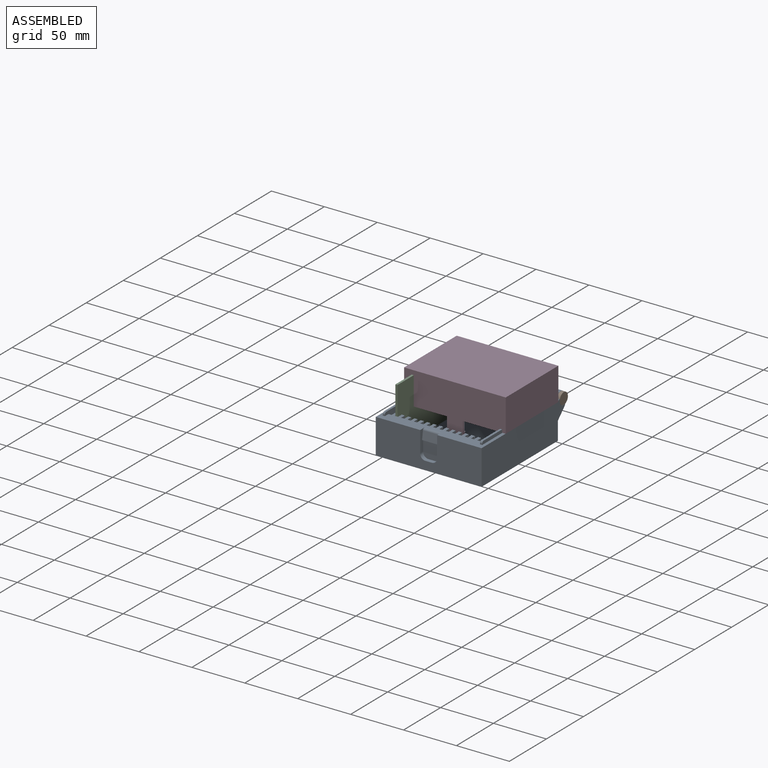
[diagram: assembled view]
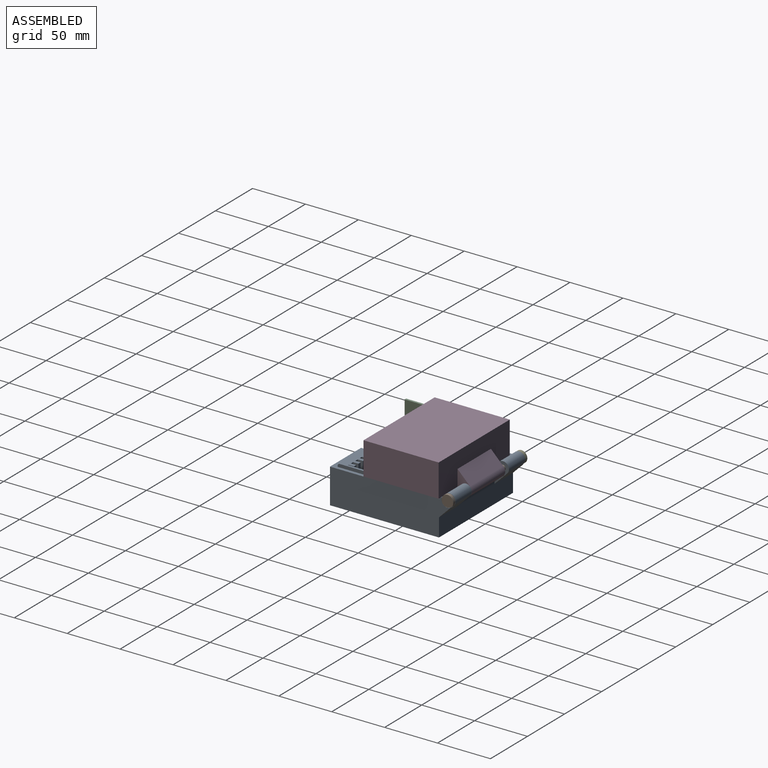
[diagram: assembled view, second angle]
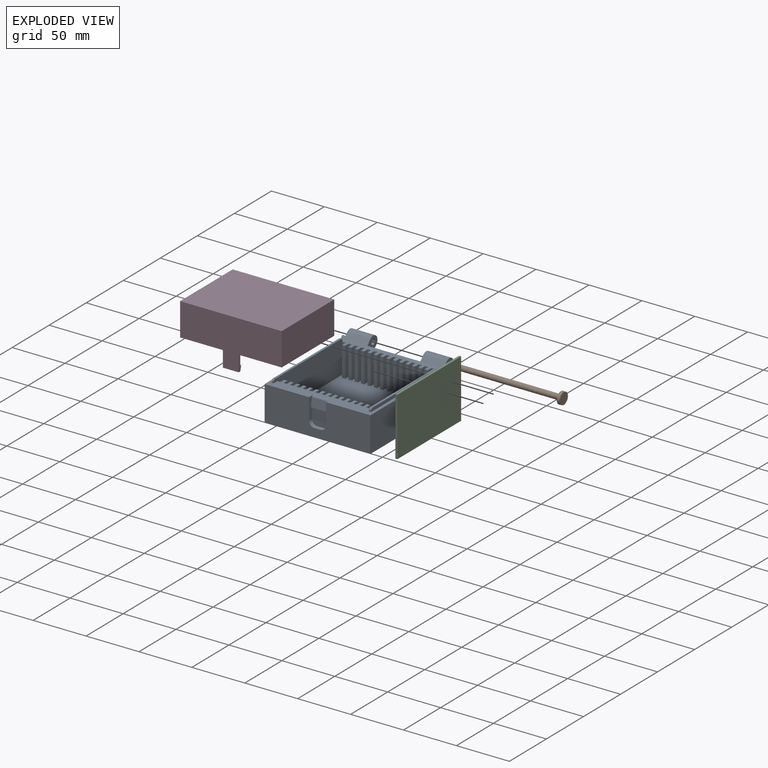
[diagram: exploded view]
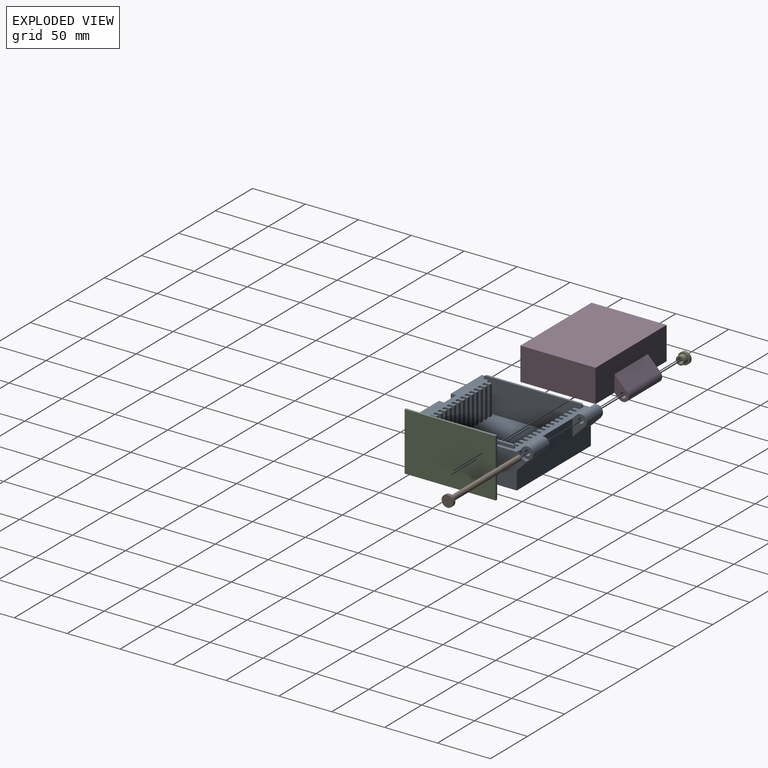
[diagram: exploded view, second angle]
ASSEMBLY  parts=5 mates=4
PART A: 168 faces, bbox 100x116.6x38.7 mm
  f0: plane 103x100mm, normal (0,0,1), area 2367.5mm2, adj f1,f3,f4,f5,f6,f7,f8,f9
  f1: plane 100x33mm, normal (0,-1,0), area 2910.7mm2, adj f0,f36,f37,f39,f159,f160,f165,f166
  f2: cylinder r=2.55mm len=17mm, axis (-1,0,0), area 272.4mm2, adj f140,f146
  f3: plane 100x33mm, normal (0,1,0), area 2510mm2, adj f0,f36,f37,f39,f130,f132,f138,f140
  f4: plane 92.8x31mm, normal (-1,0,0), area 2460.7mm2, adj f0,f19,f83,f127,f151,f152,f154,f155
  f5: plane 28x3mm, normal (0,1,0), area 84mm2, adj f0,f19,f105,f124
  f6: plane 28x3mm, normal (0,1,0), area 84mm2, adj f0,f19,f111,f121
  f7: plane 28x3mm, normal (0,1,0), area 84mm2, adj f0,f19,f117,f120
  f8: plane 28x3mm, normal (0,1,0), area 84mm2, adj f0,f19,f102,f114
  f9: plane 28x3mm, normal (0,1,0), area 84mm2, adj f0,f19,f95,f112
  f10: plane 28x3mm, normal (0,1,0), area 84mm2, adj f0,f19,f86,f108
  f11: plane 28x3mm, normal (0,1,0), area 84mm2, adj f0,f19,f98,f106
  f12: plane 28x3mm, normal (0,1,0), area 84mm2, adj f0,f19,f103,f119
  f13: plane 28x3mm, normal (0,1,0), area 84mm2, adj f0,f19,f100,f116
  f14: plane 28x3mm, normal (0,1,0), area 84mm2, adj f0,f19,f96,f99
  f15: plane 28x3mm, normal (0,1,0), area 84mm2, adj f0,f19,f93,f126
  f16: plane 28x3mm, normal (0,1,0), area 84mm2, adj f0,f19,f91,f123
  f17: plane 28x3mm, normal (0,1,0), area 84mm2, adj f0,f19,f88,f90
  f18: plane 28x3mm, normal (0,1,0), area 84mm2, adj f0,f19,f84,f87
  f19: plane 90x88mm, normal (0,0,1), area 7470mm2, adj f4,f5,f6,f7,f8,f9,f10,f11
  f20: plane 28x3mm, normal (0,-1,0), area 84mm2, adj f0,f19,f81,f82
  f21: plane 28x3mm, normal (0,-1,0), area 84mm2, adj f0,f19,f78,f79
  f22: plane 28x3mm, normal (0,-1,0), area 84mm2, adj f0,f19,f75,f76
  f23: plane 28x3mm, normal (0,-1,0), area 84mm2, adj f0,f19,f72,f73
  f24: plane 28x3mm, normal (0,-1,0), area 84mm2, adj f0,f19,f69,f70
  f25: plane 28x3mm, normal (0,-1,0), area 84mm2, adj f0,f19,f66,f67
  f26: plane 28x3mm, normal (0,-1,0), area 84mm2, adj f0,f19,f63,f64
  f27: plane 28x3mm, normal (0,-1,0), area 84mm2, adj f0,f19,f60,f61
  f28: plane 28x3mm, normal (0,-1,0), area 84mm2, adj f0,f19,f57,f58
  f29: plane 28x3mm, normal (0,-1,0), area 84mm2, adj f0,f19,f54,f55
  f30: plane 28x3mm, normal (0,-1,0), area 84mm2, adj f0,f19,f51,f52
  f31: plane 28x3mm, normal (0,-1,0), area 84mm2, adj f0,f19,f48,f49
  f32: plane 28x3mm, normal (0,-1,0), area 84mm2, adj f0,f19,f45,f46
  f33: plane 28x3mm, normal (0,-1,0), area 84mm2, adj f0,f19,f42,f43
  f34: plane 28x3mm, normal (0,-1,0), area 84mm2, adj f0,f19,f38,f40
  f35: plane 28x3mm, normal (0,1,0), area 84mm2, adj f0,f19,f38,f110
  f36: plane 112.73x34.83mm, normal (1,0,0), area 3474.8mm2, adj f0,f1,f3,f39,f129,f130,f133,f135
  f37: plane 112.73x34.83mm, normal (-1,0,0), area 3474.8mm2, adj f0,f1,f3,f39,f137,f138,f141,f143
  f38: plane 92.9x31mm, normal (1,0,0), area 2740.7mm2, adj f0,f19,f34,f35,f147,f149,f150,f157
  f39: plane 103x100mm, normal (0,0,-1), area 10300mm2, adj f1,f3,f36,f37
  f40: plane 28x5mm, normal (-1,0,0), area 140mm2, adj f0,f19,f34,f41
  f41: plane 28x3mm, normal (0,-1,0), area 84mm2, adj f0,f19,f40,f42
  f42: plane 28x5mm, normal (1,0,0), area 140mm2, adj f0,f19,f33,f41
  f43: plane 28x5mm, normal (-1,0,0), area 140mm2, adj f0,f19,f33,f44
  f44: plane 28x3mm, normal (0,-1,0), area 84mm2, adj f0,f19,f43,f45
  f45: plane 28x5mm, normal (1,0,0), area 140mm2, adj f0,f19,f32,f44
  f46: plane 28x5mm, normal (-1,0,0), area 140mm2, adj f0,f19,f32,f47
  f47: plane 28x3mm, normal (0,-1,0), area 84mm2, adj f0,f19,f46,f48
  f48: plane 28x5mm, normal (1,0,0), area 140mm2, adj f0,f19,f31,f47
  f49: plane 28x5mm, normal (-1,0,0), area 140mm2, adj f0,f19,f31,f50
  f50: plane 28x3mm, normal (0,-1,0), area 84mm2, adj f0,f19,f49,f51
  f51: plane 28x5mm, normal (1,0,0), area 140mm2, adj f0,f19,f30,f50
  f52: plane 28x5mm, normal (-1,0,0), area 140mm2, adj f0,f19,f30,f53
  f53: plane 28x3mm, normal (0,-1,0), area 84mm2, adj f0,f19,f52,f54
  f54: plane 28x5mm, normal (1,0,0), area 140mm2, adj f0,f19,f29,f53
  f55: plane 28x5mm, normal (-1,0,0), area 140mm2, adj f0,f19,f29,f56
  f56: plane 28x3mm, normal (0,-1,0), area 84mm2, adj f0,f19,f55,f57
  f57: plane 28x5mm, normal (1,0,0), area 140mm2, adj f0,f19,f28,f56
  f58: plane 28x5mm, normal (-1,0,0), area 140mm2, adj f0,f19,f28,f59
  f59: plane 28x3mm, normal (0,-1,0), area 84mm2, adj f0,f19,f58,f60
  f60: plane 28x5mm, normal (1,0,0), area 140mm2, adj f0,f19,f27,f59
  f61: plane 28x5mm, normal (-1,0,0), area 140mm2, adj f0,f19,f27,f62
  f62: plane 28x3mm, normal (0,-1,0), area 84mm2, adj f0,f19,f61,f63
  f63: plane 28x5mm, normal (1,0,0), area 140mm2, adj f0,f19,f26,f62
  f64: plane 28x5mm, normal (-1,0,0), area 140mm2, adj f0,f19,f26,f65
  f65: plane 28x3mm, normal (0,-1,0), area 84mm2, adj f0,f19,f64,f66
  f66: plane 28x5mm, normal (1,0,0), area 140mm2, adj f0,f19,f25,f65
  f67: plane 28x5mm, normal (-1,0,0), area 140mm2, adj f0,f19,f25,f68
  f68: plane 28x3mm, normal (0,-1,0), area 84mm2, adj f0,f19,f67,f69
  f69: plane 28x5mm, normal (1,0,0), area 140mm2, adj f0,f19,f24,f68
  f70: plane 28x5mm, normal (-1,0,0), area 140mm2, adj f0,f19,f24,f71
  f71: plane 28x3mm, normal (0,-1,0), area 84mm2, adj f0,f19,f70,f72
  f72: plane 28x5mm, normal (1,0,0), area 140mm2, adj f0,f19,f23,f71
  f73: plane 28x5mm, normal (-1,0,0), area 140mm2, adj f0,f19,f23,f74
  f74: plane 28x3mm, normal (0,-1,0), area 84mm2, adj f0,f19,f73,f75
  f75: plane 28x5mm, normal (1,0,0), area 140mm2, adj f0,f19,f22,f74
  f76: plane 28x5mm, normal (-1,0,0), area 140mm2, adj f0,f19,f22,f77
  f77: plane 28x3mm, normal (0,-1,0), area 84mm2, adj f0,f19,f76,f78
  f78: plane 28x5mm, normal (1,0,0), area 140mm2, adj f0,f19,f21,f77
  f79: plane 28x5mm, normal (-1,0,0), area 140mm2, adj f0,f19,f21,f80
  f80: plane 28x3mm, normal (0,-1,0), area 84mm2, adj f0,f19,f79,f81
  f81: plane 28x5mm, normal (1,0,0), area 140mm2, adj f0,f19,f20,f80
  f82: plane 28x5mm, normal (-1,0,0), area 140mm2, adj f0,f19,f20,f83
  f83: plane 28x3mm, normal (0,-1,0), area 84mm2, adj f0,f4,f19,f82
  f84: plane 28x5mm, normal (1,0,0), area 140mm2, adj f0,f18,f19,f85
  f85: plane 28x3mm, normal (0,1,0), area 84mm2, adj f0,f19,f84,f86
  f86: plane 28x5mm, normal (-1,0,0), area 140mm2, adj f0,f10,f19,f85
  f87: plane 28x5mm, normal (-1,0,0), area 140mm2, adj f0,f18,f19,f89
  f88: plane 28x5mm, normal (1,0,0), area 140mm2, adj f0,f17,f19,f89
  f89: plane 28x3mm, normal (0,1,0), area 84mm2, adj f0,f19,f87,f88
  f90: plane 28x5mm, normal (-1,0,0), area 140mm2, adj f0,f17,f19,f92
  f91: plane 28x5mm, normal (1,0,0), area 140mm2, adj f0,f16,f19,f92
  f92: plane 28x3mm, normal (0,1,0), area 84mm2, adj f0,f19,f90,f91
  f93: plane 28x5mm, normal (1,0,0), area 140mm2, adj f0,f15,f19,f94
  f94: plane 28x3mm, normal (0,1,0), area 84mm2, adj f0,f19,f93,f95
  f95: plane 28x5mm, normal (-1,0,0), area 140mm2, adj f0,f9,f19,f94
  f96: plane 28x5mm, normal (1,0,0), area 140mm2, adj f0,f14,f19,f97
  f97: plane 28x3mm, normal (0,1,0), area 84mm2, adj f0,f19,f96,f98
  f98: plane 28x5mm, normal (-1,0,0), area 140mm2, adj f0,f11,f19,f97
  f99: plane 28x5mm, normal (-1,0,0), area 140mm2, adj f0,f14,f19,f101
  f100: plane 28x5mm, normal (1,0,0), area 140mm2, adj f0,f13,f19,f101
  f101: plane 28x3mm, normal (0,1,0), area 84mm2, adj f0,f19,f99,f100
  f102: plane 28x5mm, normal (-1,0,0), area 140mm2, adj f0,f8,f19,f104
  f103: plane 28x5mm, normal (1,0,0), area 140mm2, adj f0,f12,f19,f104
  f104: plane 28x3mm, normal (0,1,0), area 84mm2, adj f0,f19,f102,f103
  f105: plane 28x5mm, normal (-1,0,0), area 140mm2, adj f0,f5,f19,f107
  f106: plane 28x5mm, normal (1,0,0), area 140mm2, adj f0,f11,f19,f107
  f107: plane 28x3mm, normal (0,1,0), area 84mm2, adj f0,f19,f105,f106
  f108: plane 28x5mm, normal (1,0,0), area 140mm2, adj f0,f10,f19,f109
  f109: plane 28x3mm, normal (0,1,0), area 84mm2, adj f0,f19,f108,f110
  f110: plane 28x5mm, normal (-1,0,0), area 140mm2, adj f0,f19,f35,f109
  f111: plane 28x5mm, normal (-1,0,0), area 140mm2, adj f0,f6,f19,f113
  f112: plane 28x5mm, normal (1,0,0), area 140mm2, adj f0,f9,f19,f113
  f113: plane 28x3mm, normal (0,1,0), area 84mm2, adj f0,f19,f111,f112
  f114: plane 28x5mm, normal (1,0,0), area 140mm2, adj f0,f8,f19,f115
  f115: plane 28x3mm, normal (0,1,0), area 84mm2, adj f0,f19,f114,f116
  f116: plane 28x5mm, normal (-1,0,0), area 140mm2, adj f0,f13,f19,f115
  f117: plane 28x5mm, normal (1,0,0), area 140mm2, adj f0,f7,f19,f118
  f118: plane 28x3mm, normal (0,1,0), area 84mm2, adj f0,f19,f117,f119
  f119: plane 28x5mm, normal (-1,0,0), area 140mm2, adj f0,f12,f19,f118
  f120: plane 28x5mm, normal (-1,0,0), area 140mm2, adj f0,f7,f19,f122
  f121: plane 28x5mm, normal (1,0,0), area 140mm2, adj f0,f6,f19,f122
  f122: plane 28x3mm, normal (0,1,0), area 84mm2, adj f0,f19,f120,f121
  f123: plane 28x5mm, normal (-1,0,0), area 140mm2, adj f0,f16,f19,f125
  f124: plane 28x5mm, normal (1,0,0), area 140mm2, adj f0,f5,f19,f125
  f125: plane 28x3mm, normal (0,1,0), area 84mm2, adj f0,f19,f123,f124
  f126: plane 28x5mm, normal (-1,0,0), area 140mm2, adj f0,f15,f19,f127
  f127: plane 28x3mm, normal (0,1,0), area 84mm2, adj f0,f4,f19,f126
  f128: cylinder r=2.55mm len=22mm, axis (1,0,0), area 352.5mm2, adj f132,f134
  f129: plane 25x4.05mm, normal (0,-0.71,0.71), area 133.2mm2, adj f0,f36,f131,f132,f134,f135
  f130: plane 25x11.95mm, normal (0,0.71,-0.71), area 412.5mm2, adj f3,f36,f131,f132,f134,f136
  f131: cylinder r=5.59mm len=22mm, axis (1,0,0), area 386.1mm2, adj f129,f130,f132,f134
  f132: plane 21.49x13.59mm, normal (-1,0,0), area 155mm2, adj f3,f128,f129,f130,f131
  f133: cylinder r=5.59mm len=6.72mm, axis (1,0,0), area 33.2mm2, adj f36,f134,f135,f136
  f134: plane 11.9x11.9mm, normal (1,0,0), area 79.2mm2, adj f128,f129,f130,f131,f133,f135,f136
  f135: cylinder r=0.5mm len=3mm, axis (1,0,0), area 3.8mm2, adj f36,f129,f133,f134
  f136: cylinder r=0.5mm len=3mm, axis (1,0,0), area 3.8mm2, adj f36,f130,f133,f134
  f137: plane 25x4.05mm, normal (0,-0.71,0.71), area 133.2mm2, adj f0,f37,f139,f140,f142,f143
  f138: plane 25x11.95mm, normal (0,0.71,-0.71), area 412.5mm2, adj f3,f37,f139,f140,f142,f144
  f139: cylinder r=5.59mm len=22mm, axis (-1,0,0), area 386.1mm2, adj f137,f138,f140,f142
  f140: plane 21.49x13.59mm, normal (1,0,0), area 155mm2, adj f2,f3,f137,f138,f139
  f141: cylinder r=5.59mm len=6.72mm, axis (-1,0,0), area 33.2mm2, adj f37,f142,f143,f144
  f142: plane 11.9x11.9mm, normal (-1,0,0), area 48.1mm2, adj f137,f138,f139,f141,f143,f144,f145
  f143: cylinder r=0.5mm len=3mm, axis (-1,0,0), area 3.8mm2, adj f37,f137,f141,f142
  f144: cylinder r=0.5mm len=3mm, axis (-1,0,0), area 3.8mm2, adj f37,f138,f141,f142
  f145: cylinder r=4.05mm len=8.1mm, axis (-1,0,0), area 127.2mm2, adj f142,f146
  f146: plane 8.1x8.1mm, normal (-1,0,0), area 31.1mm2, adj f2,f145
  f147: plane 2x1mm, normal (0,1,0), area 2mm2, adj f0,f38,f148,f157
  f148: plane 92.8x3mm, normal (-1,0,0), area 276.7mm2, adj f0,f147,f149,f150,f157,f158
  f149: plane 2x1mm, normal (0,-1,0), area 2mm2, adj f0,f38,f148,f158
  f150: plane 88.8x2mm, normal (0,0,1), area 177.6mm2, adj f38,f148,f157,f158
  f151: plane 2x1mm, normal (0,1,0), area 2mm2, adj f0,f4,f153,f156
  f152: plane 2x1mm, normal (0,-1,0), area 2mm2, adj f0,f4,f153,f155
  f153: plane 92.8x3mm, normal (1,0,0), area 276.7mm2, adj f0,f151,f152,f154,f155,f156
  f154: plane 88.8x2mm, normal (0,0,1), area 177.6mm2, adj f4,f153,f155,f156
  f155: cylinder r=2mm len=2mm, axis (-1,0,0), area 6.3mm2, adj f4,f152,f153,f154
  f156: cylinder r=2mm len=2mm, axis (1,0,0), area 6.3mm2, adj f4,f151,f153,f154
  f157: cylinder r=2mm len=2mm, axis (1,0,0), area 6.3mm2, adj f38,f147,f148,f150
  f158: cylinder r=2mm len=2mm, axis (-1,0,0), area 6.3mm2, adj f38,f148,f149,f150
  f159: plane 20x5.71mm, normal (-1,0,0), area 73.5mm2, adj f0,f1,f161,f162,f163,f164,f167
  f160: plane 20x5.71mm, normal (1,0,0), area 73.5mm2, adj f0,f1,f161,f162,f163,f164,f166
  f161: plane 16x7.81mm, normal (0,-0.99,0.16), area 126.5mm2, adj f159,f160,f162,f164
  f162: plane 16x1.5mm, normal (0,0,-1), area 24mm2, adj f159,f160,f161,f163
  f163: plane 16x15.5mm, normal (0,-1,0), area 237.3mm2, adj f159,f160,f162,f165,f166,f167
  f164: cylinder r=2mm len=16mm, axis (-1,0,0), area 45.3mm2, adj f0,f159,f160,f161
  f165: plane 6x4mm, normal (0,0,1), area 24mm2, adj f1,f163,f166,f167
  f166: cylinder r=5mm len=5mm, axis (0,1,0), area 31.4mm2, adj f1,f160,f163,f165
  f167: cylinder r=5mm len=5mm, axis (0,-1,0), area 31.4mm2, adj f1,f159,f163,f165
PART B: 5 faces, bbox 11x11x97.1 mm
  f0: cylinder r=2.5mm len=94.2mm, axis (0,0,-1), area 1479.7mm2, adj f1,f3
  f1: plane 5x5mm, normal (0,0,1), area 19.6mm2, adj f0
  f2: cylinder r=5.5mm len=11mm, axis (0,0,-1), area 100.2mm2, adj f3,f4
  f3: plane 11x11mm, normal (0,0,1), area 75.4mm2, adj f0,f2
  f4: plane 11x11mm, normal (0,0,-1), area 95mm2, adj f2
PART C: 6 faces, bbox 86x55x2 mm
  f0: plane 55x2mm, normal (1,0,0), area 110mm2, adj f1,f3,f4,f5
  f1: plane 86x2mm, normal (0,1,0), area 172mm2, adj f0,f2,f4,f5
  f2: plane 55x2mm, normal (-1,0,0), area 110mm2, adj f1,f3,f4,f5
  f3: plane 86x2mm, normal (0,-1,0), area 172mm2, adj f0,f2,f4,f5
  f4: plane 86x55mm, normal (0,0,1), area 4730mm2, adj f0,f1,f2,f3
  f5: plane 86x55mm, normal (0,0,-1), area 4730mm2, adj f0,f1,f2,f3
PART D: 34 faces, bbox 96x84.6x46 mm
  f0: plane 96x71mm, normal (0,0,1), area 687mm2, adj f4,f5,f6,f7,f13,f15,f16,f25
  f1: plane 65x27mm, normal (-1,0,0), area 1595.2mm2, adj f3,f4,f16,f18,f21,f22
  f2: plane 65x27mm, normal (1,0,0), area 1595.2mm2, adj f3,f4,f16,f20,f23,f24
  f3: plane 90x65mm, normal (0,0,1), area 5850mm2, adj f1,f2,f4,f16
  f4: plane 93.6x28mm, normal (0,-1,0), area 2523.2mm2, adj f0,f1,f2,f3,f17,f19,f22,f23
  f5: plane 71x31mm, normal (1,0,0), area 2201mm2, adj f0,f6,f8,f15
  f6: plane 96x31mm, normal (0,1,0), area 2265mm2, adj f0,f5,f7,f8,f9,f10,f12
  f7: plane 71x31mm, normal (-1,0,0), area 2201mm2, adj f0,f6,f8,f15
  f8: plane 96x71mm, normal (0,0,-1), area 6816mm2, adj f5,f6,f7,f15
  f9: plane 21.49x13.59mm, normal (1,0,0), area 151.7mm2, adj f6,f11,f12,f13,f14
  f10: plane 21.49x13.59mm, normal (-1,0,0), area 151.7mm2, adj f6,f11,f12,f13,f14
  f11: cylinder r=5.59mm len=45mm, axis (1,0,0), area 789.7mm2, adj f9,f10,f12,f13
  f12: plane 45x11.95mm, normal (0,0.71,-0.71), area 760.5mm2, adj f6,f9,f10,f11
  f13: plane 45x4.05mm, normal (0,-0.71,0.71), area 257.7mm2, adj f0,f9,f10,f11
  f14: cylinder r=2.75mm len=45mm, axis (1,0,0), area 777.5mm2, adj f9,f10
  f15: plane 96x46mm, normal (0,-1,0), area 3201mm2, adj f0,f5,f7,f8,f25,f26,f28
  f16: plane 93.6x28mm, normal (0,1,0), area 2523.2mm2, adj f0,f1,f2,f3,f17,f19,f21,f24
  f17: plane 65x3.3mm, normal (-1,0,0), area 211.8mm2, adj f4,f16,f18,f21,f22,f32
  f18: plane 60x1.6mm, normal (0,0,1), area 96mm2, adj f1,f17,f21,f22
  f19: plane 65x3.3mm, normal (1,0,0), area 211.8mm2, adj f4,f16,f20,f23,f24,f33
  f20: plane 60x1.6mm, normal (0,0,1), area 96mm2, adj f2,f19,f23,f24
  f21: cylinder r=2.5mm len=2.5mm, axis (-1,0,0), area 6.3mm2, adj f1,f16,f17,f18
  f22: cylinder r=2.5mm len=2.5mm, axis (-1,0,0), area 6.3mm2, adj f1,f4,f17,f18
  f23: cylinder r=2.5mm len=2.5mm, axis (1,0,0), area 6.3mm2, adj f2,f4,f19,f20
  f24: cylinder r=2.5mm len=2.5mm, axis (1,0,0), area 6.3mm2, adj f2,f16,f19,f20
  f25: plane 15x3.2mm, normal (-1,0,0), area 33.7mm2, adj f0,f15,f27,f28,f29,f30,f31
  f26: plane 15x3.2mm, normal (1,0,0), area 33.7mm2, adj f0,f15,f27,f28,f29,f30,f31
  f27: plane 15x7.76mm, normal (0,1,0), area 116.5mm2, adj f25,f26,f30,f31
  f28: plane 15x2mm, normal (0,0,1), area 30mm2, adj f15,f25,f26,f29
  f29: plane 15x5mm, normal (0,0.97,0.23), area 77.1mm2, adj f25,f26,f28,f30
  f30: plane 15x1.2mm, normal (0,0,-1), area 18mm2, adj f25,f26,f27,f29
  f31: cylinder r=3mm len=15mm, axis (-1,0,0), area 37.8mm2, adj f16,f25,f26,f27
  f32: plane 65x0.2mm, normal (-0.71,0,0.71), area 18.4mm2, adj f0,f4,f16,f17
  f33: plane 65x0.2mm, normal (0.71,0,0.71), area 18.4mm2, adj f0,f4,f16,f19
PART E: 7 faces, bbox 11x11x7.8 mm
  f0: cylinder r=5.5mm len=11mm, axis (0,0,-1), area 100.2mm2, adj f1,f2
  f1: plane 11x11mm, normal (0,0,1), area 44.8mm2, adj f0,f4
  f2: plane 11x11mm, normal (0,0,-1), area 95mm2, adj f0
  f3: cylinder r=2.5mm len=5mm, axis (0,0,-1), area 77mm2, adj f5,f6
  f4: cylinder r=4mm len=8mm, axis (0,0,-1), area 123.2mm2, adj f1,f5
  f5: plane 8x8mm, normal (0,0,1), area 30.6mm2, adj f3,f4
  f6: plane 5x5mm, normal (0,0,1), area 19.6mm2, adj f3
PLACE A t=(1.26,-6.81,-15.46)mm fixed
PLACE B rot(axis=(0.71,0,-0.71),180deg) t=(51.26,50.19,12.64)mm
PLACE C rot(axis=(0.58,-0.58,-0.58),120deg) t=(-35.24,-7.81,12.04)mm
PLACE D rot(axis=(0,1,0),180deg) t=(3.66,9.19,40.74)mm
PLACE E rot(axis=(0.58,0.58,0.58),120deg) t=(-48.74,50.19,12.64)mm
MATE revolute B.f0 <-> E.f0  axis (-1,0,0) through (-45.84,50.19,12.64)mm
MATE fastened C.f3 <-> A.f19  axis (0,0,-1) through (-36.24,-50.81,-15.46)mm
MATE revolute B.f2 <-> D.f11  axis (1,0,0) through (51.26,50.19,12.64)mm
MATE revolute A.f2 <-> B.f0  axis (1,0,0) through (48.26,50.19,12.64)mm
